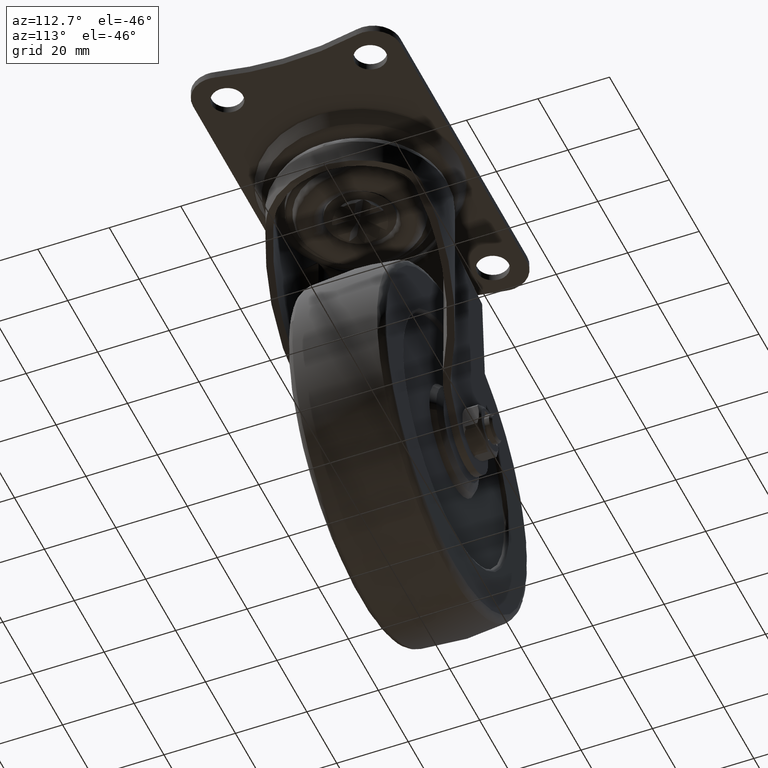
[diagram: clean part render]
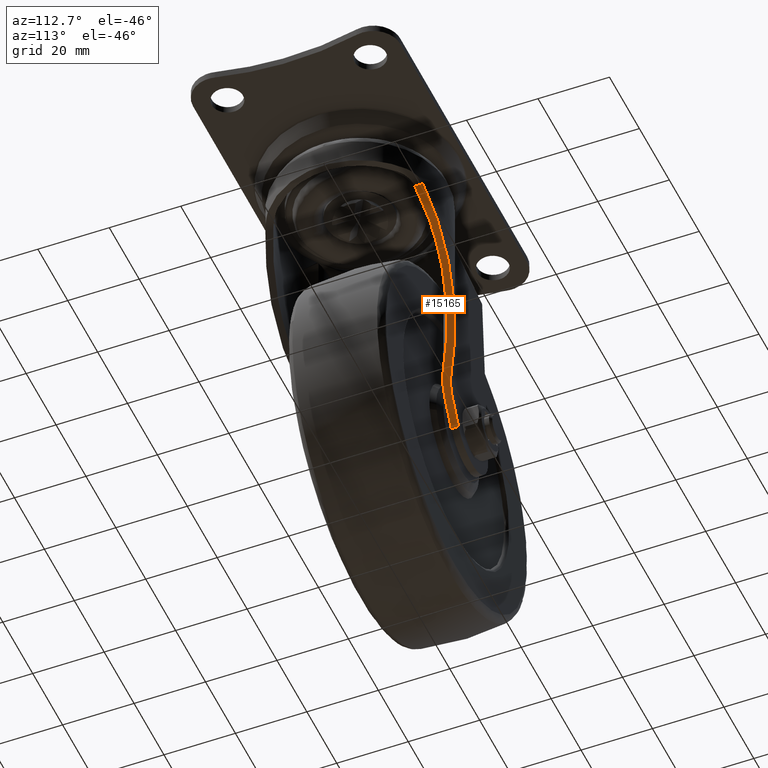
[diagram: same view with one face highlighted and labeled with its STEP entity id]
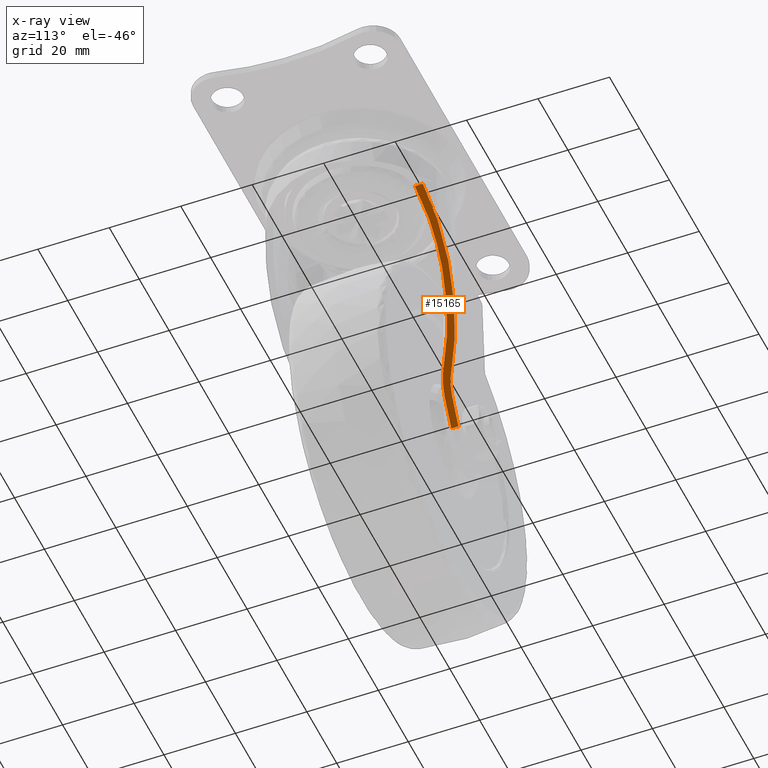
[diagram: x-ray of the same camera — body ghosted, the highlighted face saturated]
A machine part, auxiliary view. The second image highlights one B-rep face of the part: STEP entity #15165.
The next image is the same camera in x-ray: the body ghosted, the highlighted face saturated — about 0% of this face is hidden behind the body in this view.
In plain terms, the highlighted face is a freeform B-spline surface patch.
Its self-contained STEP definition (entity closure, byte-faithful):
#11048=CARTESIAN_POINT('',(-14.089540577728840,17.542372881355949,-60.742862790375803));
#11049=VERTEX_POINT('',#11048);
#11055=CARTESIAN_POINT('',(-1.222058835167674,22.466787364585429,-38.996808891214279));
#11056=VERTEX_POINT('',#11055);
#11057=CARTESIAN_POINT('',(-1.222058835167674,22.466787364585425,-38.996808891214279));
#11058=CARTESIAN_POINT('',(-8.447678395369678,22.073756248621763,-51.208111949580640));
#11059=CARTESIAN_POINT('',(-14.089540577728840,17.542372881355949,-60.742862790375803));
#11067=(BOUNDED_CURVE()B_SPLINE_CURVE(2,(#11057,#11058,#11059),.UNSPECIFIED.,.F.,.U.)B_SPLINE_CURVE_WITH_KNOTS((3,3),(0.469937941585275,1.0),.UNSPECIFIED.)CURVE()GEOMETRIC_REPRESENTATION_ITEM()RATIONAL_B_SPLINE_CURVE((0.916866139159235,0.911548043385980,1.0))REPRESENTATION_ITEM(''));
#11068=EDGE_CURVE('',#11056,#11049,#11067,.T.);
#11155=CARTESIAN_POINT('',(10.696887907131220,19.794610102304851,-18.853781958235551));
#11156=VERTEX_POINT('',#11155);
#11157=CARTESIAN_POINT('',(10.696887907131220,19.794610102304851,-18.853781958235551));
#11158=CARTESIAN_POINT('',(5.114230403832774,22.811442577313120,-28.288476939711803));
#11159=CARTESIAN_POINT('',(-1.222058835167674,22.466787364585421,-38.996808891214293));
#11167=(BOUNDED_CURVE()B_SPLINE_CURVE(2,(#11157,#11158,#11159),.UNSPECIFIED.,.F.,.U.)B_SPLINE_CURVE_WITH_KNOTS((3,3),(0.0,0.469937941585275),.UNSPECIFIED.)CURVE()GEOMETRIC_REPRESENTATION_ITEM()RATIONAL_B_SPLINE_CURVE((1.0,0.921581011580610,0.916866139159235))REPRESENTATION_ITEM(''));
#11168=EDGE_CURVE('',#11156,#11056,#11167,.T.);
#13812=CARTESIAN_POINT('',(-18.472953201911150,16.0,-68.150835256295295));
#13813=VERTEX_POINT('',#13812);
#13819=CARTESIAN_POINT('',(-14.089540577728821,17.542372881355949,-60.742862790375817));
#13820=CARTESIAN_POINT('',(-16.009892820686545,15.999999963297537,-63.988260328863582));
#13821=CARTESIAN_POINT('',(-18.472953201911150,16.0,-68.150835256295295));
#13829=(BOUNDED_CURVE()B_SPLINE_CURVE(2,(#13819,#13820,#13821),.UNSPECIFIED.,.F.,.U.)CURVE()GEOMETRIC_REPRESENTATION_ITEM()QUASI_UNIFORM_CURVE()RATIONAL_B_SPLINE_CURVE((1.0,0.943308276126636,1.0))REPRESENTATION_ITEM(''));
#13830=EDGE_CURVE('',#11049,#13813,#13829,.T.);
#13977=CARTESIAN_POINT('',(-18.472953201911150,18.0,-68.150835256295295));
#13978=VERTEX_POINT('',#13977);
#13998=CARTESIAN_POINT('',(-15.341944184638100,19.101694915254249,-62.859426352067103));
#13999=VERTEX_POINT('',#13998);
#14005=CARTESIAN_POINT('',(-18.472953201911150,18.0,-68.150835256295295));
#14006=CARTESIAN_POINT('',(-16.713624325538650,17.999999999999996,-65.177567395824227));
#14007=CARTESIAN_POINT('',(-15.341944184638070,19.101694915254239,-62.859426352067111));
#14015=(BOUNDED_CURVE()B_SPLINE_CURVE(2,(#14005,#14006,#14007),.UNSPECIFIED.,.F.,.U.)CURVE()GEOMETRIC_REPRESENTATION_ITEM()QUASI_UNIFORM_CURVE()RATIONAL_B_SPLINE_CURVE((1.0,0.943308278599621,1.0))REPRESENTATION_ITEM(''));
#14016=EDGE_CURVE('',#13978,#13999,#14015,.T.);
#14749=CARTESIAN_POINT('',(-22.791341072274552,18.0,-75.448908216589899));
#14750=VERTEX_POINT('',#14749);
#14766=CARTESIAN_POINT('',(-22.791337137451201,16.0,-75.448909162289198));
#14767=VERTEX_POINT('',#14766);
#14768=CARTESIAN_POINT('',(-22.791341072274552,18.0,-75.448908216589899));
#14769=CARTESIAN_POINT('',(-22.791337137451201,16.0,-75.448909162289198));
#14770=QUASI_UNIFORM_CURVE('',1,(#14768,#14769),.UNSPECIFIED.,.F.,.U.);
#14771=EDGE_CURVE('',#14750,#14767,#14770,.T.);
#14876=CARTESIAN_POINT('',(10.696887907131220,22.041476915780500,-18.853781958235551));
#14877=VERTEX_POINT('',#14876);
#14878=CARTESIAN_POINT('',(10.696887907131220,22.041476915780500,-18.853781958235551));
#14879=CARTESIAN_POINT('',(-3.252797759881829,28.811355302620850,-42.428760578831081));
#14880=CARTESIAN_POINT('',(-15.341944184638100,19.101694915254249,-62.859426352067103));
#14888=(BOUNDED_CURVE()B_SPLINE_CURVE(2,(#14878,#14879,#14880),.UNSPECIFIED.,.F.,.U.)CURVE()GEOMETRIC_REPRESENTATION_ITEM()QUASI_UNIFORM_CURVE()RATIONAL_B_SPLINE_CURVE((1.0,0.844990921215787,1.0))REPRESENTATION_ITEM(''));
#14889=EDGE_CURVE('',#14877,#13999,#14888,.T.);
#15029=CARTESIAN_POINT('',(10.696887907131220,22.041476915780500,-18.853781958235551));
#15030=CARTESIAN_POINT('',(10.696887907131220,19.794610102304851,-18.853781958235551));
#15031=QUASI_UNIFORM_CURVE('',1,(#15029,#15030),.UNSPECIFIED.,.F.,.U.);
#15032=EDGE_CURVE('',#14877,#11156,#15031,.T.);
#15066=CARTESIAN_POINT('',(-18.472953201911150,16.0,-68.150835256295295));
#15067=CARTESIAN_POINT('',(-22.791337137451201,16.0,-75.448909162289198));
#15068=QUASI_UNIFORM_CURVE('',1,(#15066,#15067),.UNSPECIFIED.,.F.,.U.);
#15069=EDGE_CURVE('',#13813,#14767,#15068,.T.);
#15145=CARTESIAN_POINT('',(-24.464073651276770,15.575467986879501,-78.275835828694525));
#15146=CARTESIAN_POINT('',(12.369619912039569,15.575467986879501,-16.026850590609179));
#15147=CARTESIAN_POINT('',(-24.464073651276770,24.923671972686410,-78.275835828694525));
#15148=CARTESIAN_POINT('',(12.369619912039569,24.923671972686410,-16.026850590609179));
#15149=B_SPLINE_SURFACE_WITH_KNOTS('',1,1,((#15145,#15147),(#15146,#15148)),.UNSPECIFIED.,.F.,.F.,.U.,(2,2),(2,2),(0.0,72.330195248510563),(0.0,9.348203985806913),.UNSPECIFIED.);
#15150=ORIENTED_EDGE('',*,*,#11168,.T.);
#15151=ORIENTED_EDGE('',*,*,#11068,.T.);
#15152=ORIENTED_EDGE('',*,*,#13830,.T.);
#15153=ORIENTED_EDGE('',*,*,#15069,.T.);
#15154=ORIENTED_EDGE('',*,*,#14771,.F.);
#15155=CARTESIAN_POINT('',(-18.472953201911150,18.0,-68.150835256295295));
#15156=CARTESIAN_POINT('',(-22.791341072274552,18.0,-75.448908216589899));
#15157=QUASI_UNIFORM_CURVE('',1,(#15155,#15156),.UNSPECIFIED.,.F.,.U.);
#15158=EDGE_CURVE('',#13978,#14750,#15157,.T.);
#15159=ORIENTED_EDGE('',*,*,#15158,.F.);
#15160=ORIENTED_EDGE('',*,*,#14016,.T.);
#15161=ORIENTED_EDGE('',*,*,#14889,.F.);
#15162=ORIENTED_EDGE('',*,*,#15032,.T.);
#15163=EDGE_LOOP('',(#15150,#15151,#15152,#15153,#15154,#15159,#15160,#15161,#15162));
#15164=FACE_OUTER_BOUND('',#15163,.T.);
#15165=ADVANCED_FACE('',(#15164),#15149,.F.);